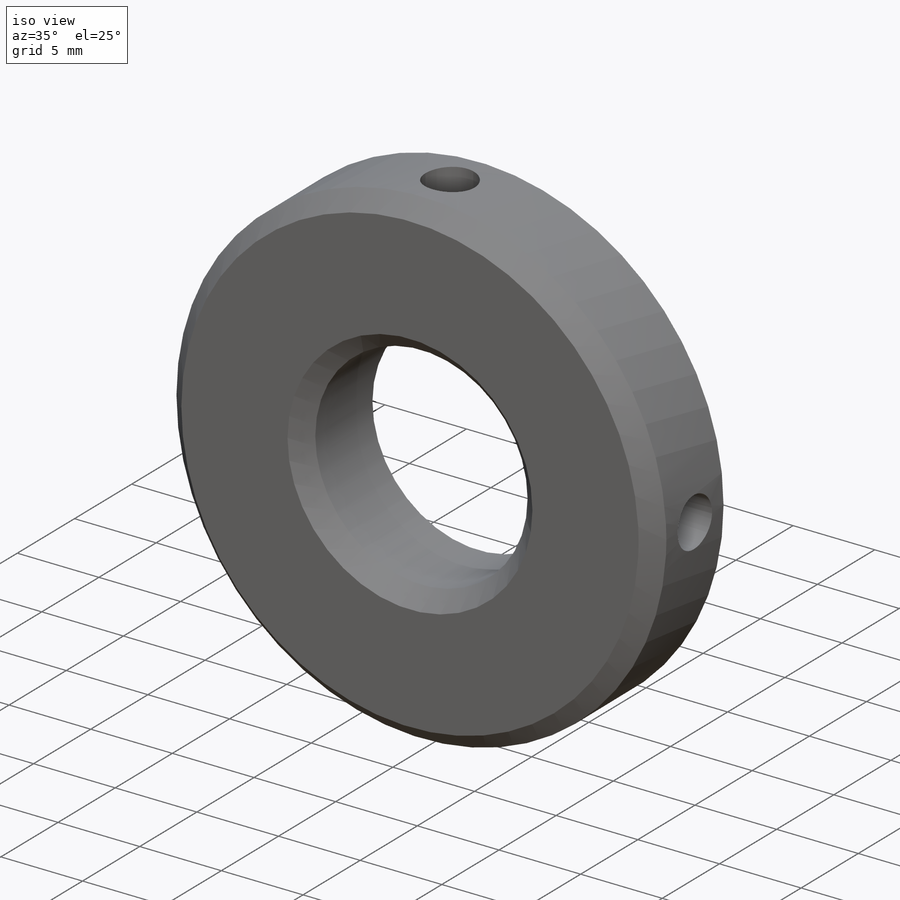
[diagram: iso view]
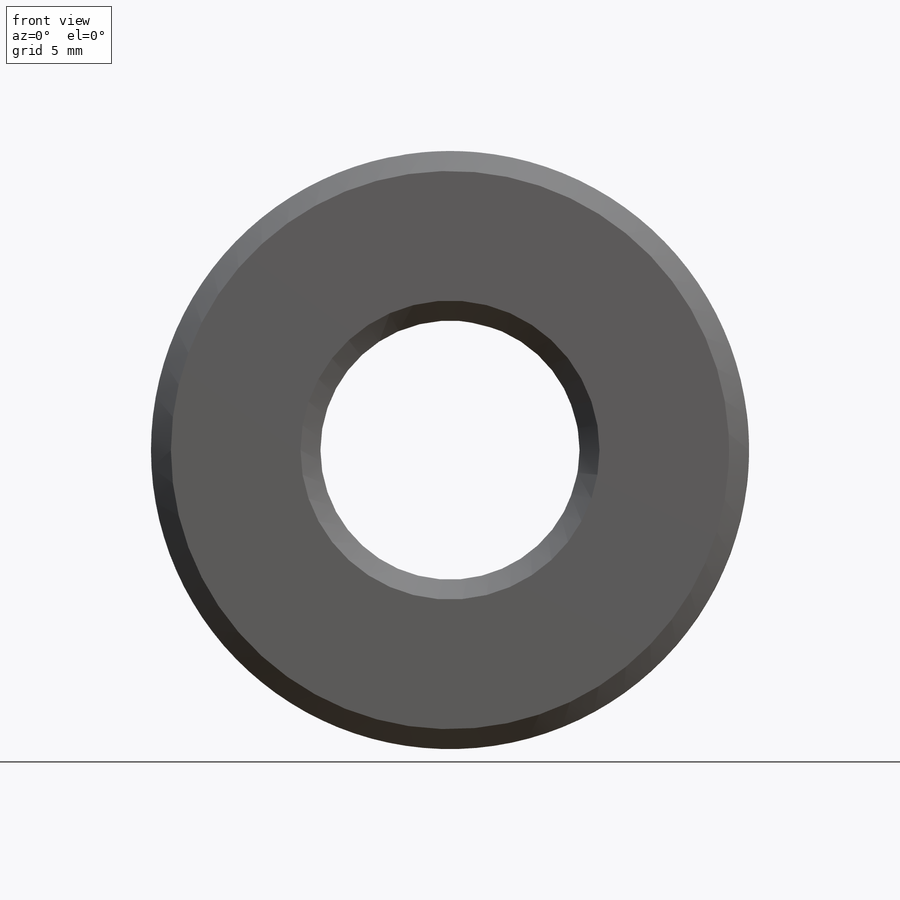
[diagram: front view]
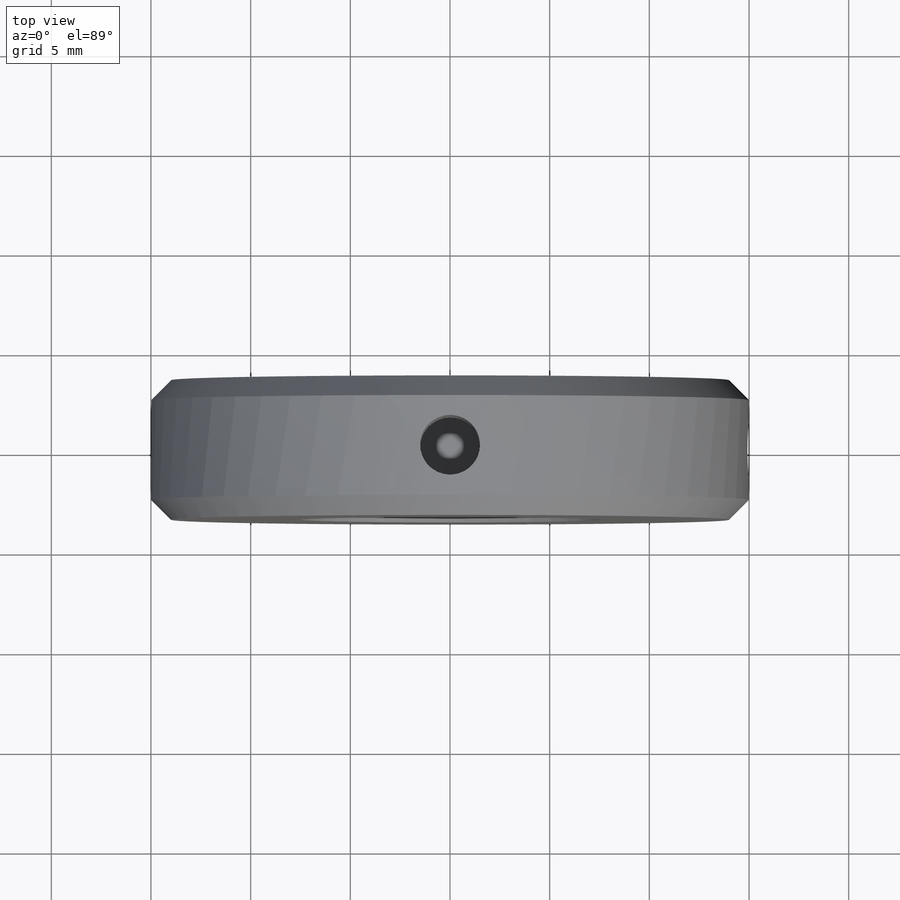
[diagram: top view]
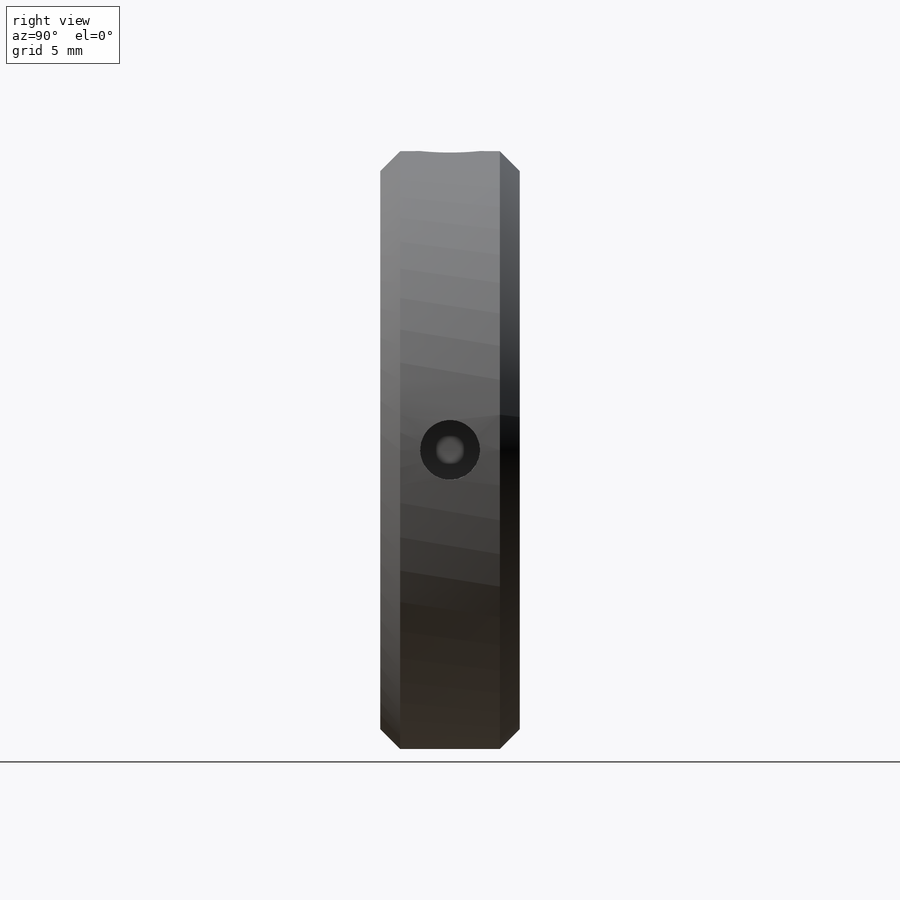
[diagram: right view]
SOLIDWORKS PART (.sldprt)
format: sldprt  version: not decoded by parser v0  size: 155,136 bytes
history: native  units: mm
features: sketch x3, material x1, extrude x1, hole x1, chamfer x1 (+15 scaffold rows collapsed)
feature tree (22):
  scaffold x15  (default folders/planes/origin — collapsed)
  material  "Material <not specified>"
  sketch  "Sketch1"  dims[D1=13.0mm D2=30.0mm]
  extrude  "Extrude1"  Depth=3.5mm
  hole  "Ø3.0 (3) Diameter Hole1"  Diameter=3mm Depth=12mm
  sketch  "3DSketch1"
  sketch  "Sketch2"  dims[hole-wizard template sketch: 47 standard entries collapsed; hole parameters kept: c15.Hole Depth=12.0mm c15.D3=~14.816244mm c15.Drill Angle=118.0deg]
  chamfer  "Chamfer1"  Distance=1mm Angle=45deg
decode coverage: 5 of 6 modeling features carry decoded parameters
note: ~ marks probable driven/reference dimensions
note: suppression state not decoded; provenance and decode notes live in map.json
